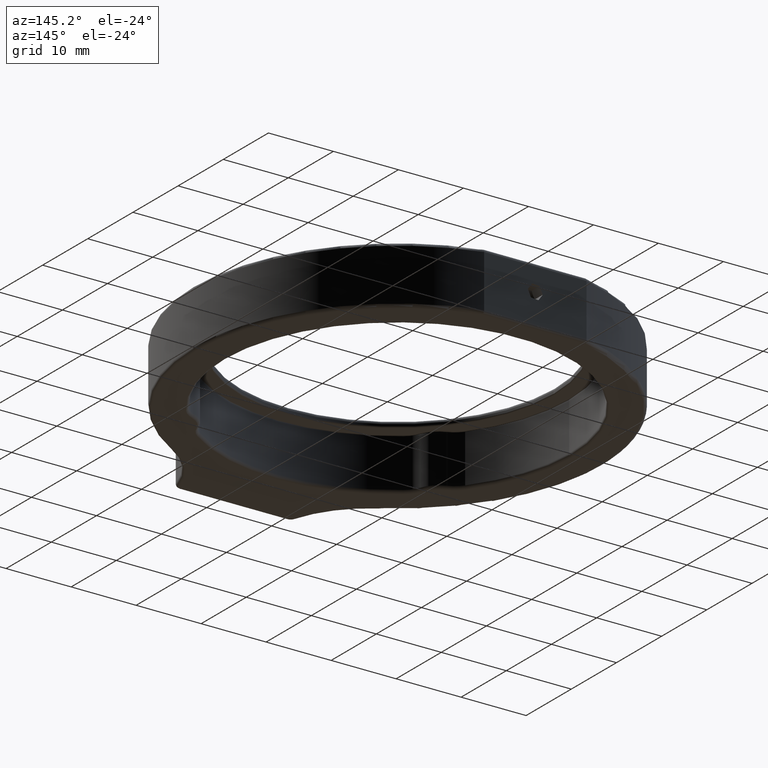
[diagram: clean part render]
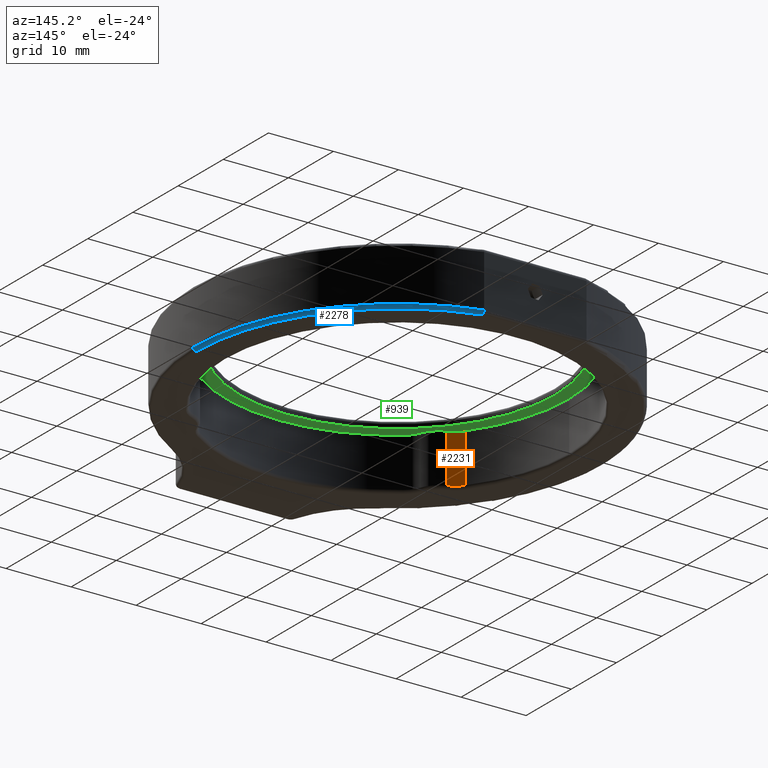
[diagram: same view with three faces highlighted in distinct colors, each labeled with its STEP entity id]
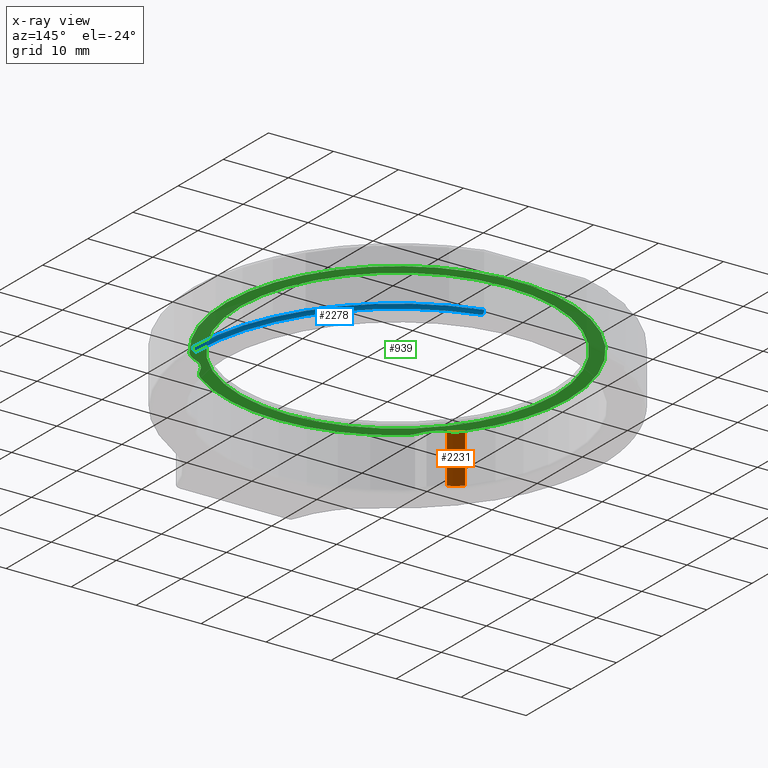
[diagram: x-ray of the same camera — body ghosted, the three highlighted faces saturated]
A machine part, auxiliary view with three faces highlighted in distinct colors.
The next image is the same camera in x-ray (body ghosted, the three faces saturated) — at least one of them is partly hidden behind the body in this view.
Their STEP definitions:

[orange] entity #2231 — the highlighted cylindrical surface (edge-blend (fillet) strip) has radius 4 mm, axis along (0, 0, -1).
#76 = CARTESIAN_POINT ( 'NONE',  ( -3.451771902203665500, -10.57320281242934000, 8.000000000007276000 ) ) ;
#82 = ORIENTED_EDGE ( 'NONE', *, *, #1062, .T. ) ;
#234 = EDGE_CURVE ( 'NONE', #1575, #1074, #2184, .T. ) ;
#247 = LINE ( 'NONE', #76, #892 ) ;
#558 = EDGE_CURVE ( 'NONE', #1888, #1776, #2025, .T. ) ;
#632 = AXIS2_PLACEMENT_3D ( 'NONE', #2185, #1344, #1780 ) ;
#758 = CARTESIAN_POINT ( 'NONE',  ( -3.451771902203665500, -10.57320281242934000, 7.900000000007276300 ) ) ;
#778 = AXIS2_PLACEMENT_3D ( 'NONE', #2369, #2135, #873 ) ;
#857 = VECTOR ( 'NONE', #2716, 1000.000000000000000 ) ;
#873 = DIRECTION ( 'NONE',  ( -1.000000000000000000, 0.0000000000000000000, 0.0000000000000000000 ) ) ;
#892 = VECTOR ( 'NONE', #1393, 1000.000000000000000 ) ;
#917 = CARTESIAN_POINT ( 'NONE',  ( -5.300392677468693100, -9.186881441482349000, 7.900000000007276300 ) ) ;
#958 = FACE_OUTER_BOUND ( 'NONE', #1402, .T. ) ;
#982 = ORIENTED_EDGE ( 'NONE', *, *, #1252, .F. ) ;
#1062 = EDGE_CURVE ( 'NONE', #1074, #1888, #247, .T. ) ;
#1074 = VERTEX_POINT ( 'NONE', #758 ) ;
#1219 = CARTESIAN_POINT ( 'NONE',  ( -5.300392677468693100, -9.186881441482349000, 0.5000000000072767300 ) ) ;
#1252 = EDGE_CURVE ( 'NONE', #1575, #1776, #2292, .T. ) ;
#1344 = DIRECTION ( 'NONE',  ( 0.0000000000000000000, -0.0000000000000000000, -1.000000000000000000 ) ) ;
#1393 = DIRECTION ( 'NONE',  ( 0.0000000000000000000, 0.0000000000000000000, -1.000000000000000000 ) ) ;
#1402 = EDGE_LOOP ( 'NONE', ( #982, #2203, #82, #1616 ) ) ;
#1442 = CARTESIAN_POINT ( 'NONE',  ( -5.300392677468693100, -9.186881441482349000, 8.000000000007276000 ) ) ;
#1495 = CARTESIAN_POINT ( 'NONE',  ( -3.451771902203665500, -10.57320281242934000, 0.5000000000072767300 ) ) ;
#1575 = VERTEX_POINT ( 'NONE', #917 ) ;
#1616 = ORIENTED_EDGE ( 'NONE', *, *, #558, .T. ) ;
#1700 = DIRECTION ( 'NONE',  ( 1.000000000000000000, 0.0000000000000000000, 0.0000000000000000000 ) ) ;
#1776 = VERTEX_POINT ( 'NONE', #1219 ) ;
#1780 = DIRECTION ( 'NONE',  ( 1.000000000000000000, -8.673617379884027600E-016, 0.0000000000000000000 ) ) ;
#1888 = VERTEX_POINT ( 'NONE', #1495 ) ;
#1917 = CYLINDRICAL_SURFACE ( 'NONE', #778, 4.000000000000003600 ) ;
#2025 = CIRCLE ( 'NONE', #632, 4.000000000000003600 ) ;
#2087 = AXIS2_PLACEMENT_3D ( 'NONE', #2754, #2518, #1700 ) ;
#2135 = DIRECTION ( 'NONE',  ( 0.0000000000000000000, 0.0000000000000000000, -1.000000000000000000 ) ) ;
#2184 = CIRCLE ( 'NONE', #2087, 4.000000000000003600 ) ;
#2185 = CARTESIAN_POINT ( 'NONE',  ( -2.078526767282554000, -6.816316096088863600, 0.5000000000072767300 ) ) ;
#2203 = ORIENTED_EDGE ( 'NONE', *, *, #234, .T. ) ;
#2231 = ADVANCED_FACE ( 'NONE', ( #958 ), #1917, .F. ) ;
#2292 = LINE ( 'NONE', #1442, #857 ) ;
#2369 = CARTESIAN_POINT ( 'NONE',  ( -2.078526767282554000, -6.816316096088863600, 8.000000000007276000 ) ) ;
#2518 = DIRECTION ( 'NONE',  ( -0.0000000000000000000, 0.0000000000000000000, 1.000000000000000000 ) ) ;
#2716 = DIRECTION ( 'NONE',  ( 0.0000000000000000000, 0.0000000000000000000, -1.000000000000000000 ) ) ;
#2754 = CARTESIAN_POINT ( 'NONE',  ( -2.078526767282554000, -6.816316096088863600, 7.900000000007276300 ) ) ;

[blue] entity #2278 — the highlighted toroidal blend (fillet) surface has major radius 31 mm and minor (blend) radius 0.5 mm.
#39 = CIRCLE ( 'NONE', #64, 0.5000000000000000000 ) ;
#64 = AXIS2_PLACEMENT_3D ( 'NONE', #2037, #2259, #949 ) ;
#158 = ORIENTED_EDGE ( 'NONE', *, *, #480, .F. ) ;
#225 = EDGE_LOOP ( 'NONE', ( #2480, #1604, #1009, #158 ) ) ;
#422 = DIRECTION ( 'NONE',  ( -0.0000000000000000000, 0.0000000000000000000, 1.000000000000000000 ) ) ;
#462 = B_SPLINE_CURVE_WITH_KNOTS ( 'NONE', 3,
 ( #1367, #1148, #737, #1385, #953, #1809 ),
 .UNSPECIFIED., .F., .F.,
 ( 4, 2, 4 ),
 ( 0.0000000000000000000, 0.0003921335252398203000, 0.0007842670504796406000 ),
 .UNSPECIFIED. ) ;
#480 = EDGE_CURVE ( 'NONE', #1879, #1613, #732, .T. ) ;
#553 = CIRCLE ( 'NONE', #2515, 31.00000000000000000 ) ;
#732 = CIRCLE ( 'NONE', #2341, 31.50000000000000000 ) ;
#737 = CARTESIAN_POINT ( 'NONE',  ( 23.83098825330529600, 36.90414387103619700, 0.2378764880585290100 ) ) ;
#789 = CARTESIAN_POINT ( 'NONE',  ( 23.83793020377155600, 36.95884983811465200, 0.5000000000072749600 ) ) ;
#848 = DIRECTION ( 'NONE',  ( 1.000000000000000000, 8.953411488912552700E-016, 0.0000000000000000000 ) ) ;
#885 = TOROIDAL_SURFACE ( 'NONE', #1832, 31.00000000000000000, 0.5000000000000000000 ) ;
#900 = CARTESIAN_POINT ( 'NONE',  ( 15.96392232975974000, 6.458849838114653100, 0.5000000000072767300 ) ) ;
#949 = DIRECTION ( 'NONE',  ( 0.0000000000000000000, 0.0000000000000000000, -1.000000000000000000 ) ) ;
#953 = CARTESIAN_POINT ( 'NONE',  ( 23.79077179640424000, 36.58850773930073100, 7.276534789209948600E-012 ) ) ;
#1009 = ORIENTED_EDGE ( 'NONE', *, *, #2111, .F. ) ;
#1143 = EDGE_CURVE ( 'NONE', #2163, #1879, #39, .T. ) ;
#1148 = CARTESIAN_POINT ( 'NONE',  ( 23.83793020377155300, 36.95884983811464500, 0.3674006963429709000 ) ) ;
#1367 = CARTESIAN_POINT ( 'NONE',  ( 23.83793020377155600, 36.95884983811465200, 0.5000000000072749600 ) ) ;
#1385 = CARTESIAN_POINT ( 'NONE',  ( 23.80747829215256300, 36.71946581592435900, 0.05382198241546933700 ) ) ;
#1604 = ORIENTED_EDGE ( 'NONE', *, *, #1874, .F. ) ;
#1613 = VERTEX_POINT ( 'NONE', #789 ) ;
#1716 = CARTESIAN_POINT ( 'NONE',  ( 15.96392232975974000, 6.458849838114653100, 0.5000000000072767300 ) ) ;
#1751 = DIRECTION ( 'NONE',  ( -0.0000000000000000000, 0.0000000000000000000, 1.000000000000000000 ) ) ;
#1809 = CARTESIAN_POINT ( 'NONE',  ( 23.77417200566638700, 36.45884983811464500, 7.276297619984717400E-012 ) ) ;
#1832 = AXIS2_PLACEMENT_3D ( 'NONE', #900, #1751, #2792 ) ;
#1874 = EDGE_CURVE ( 'NONE', #2090, #2163, #553, .T. ) ;
#1879 = VERTEX_POINT ( 'NONE', #2783 ) ;
#1907 = CARTESIAN_POINT ( 'NONE',  ( 15.96392232975974000, 6.458849838114653100, 7.276297619984717400E-012 ) ) ;
#1969 = CARTESIAN_POINT ( 'NONE',  ( 23.77417200566638700, 36.45884983811464500, 7.276297619984717400E-012 ) ) ;
#2037 = CARTESIAN_POINT ( 'NONE',  ( 46.96392232975974000, 6.458849838114653100, 0.5000000000072767300 ) ) ;
#2090 = VERTEX_POINT ( 'NONE', #1969 ) ;
#2111 = EDGE_CURVE ( 'NONE', #1613, #2090, #462, .T. ) ;
#2125 = DIRECTION ( 'NONE',  ( 0.0000000000000000000, -0.0000000000000000000, -1.000000000000000000 ) ) ;
#2163 = VERTEX_POINT ( 'NONE', #2459 ) ;
#2259 = DIRECTION ( 'NONE',  ( 0.0000000000000000000, -1.000000000000000000, 0.0000000000000000000 ) ) ;
#2278 = ADVANCED_FACE ( 'NONE', ( #2551 ), #885, .T. ) ;
#2341 = AXIS2_PLACEMENT_3D ( 'NONE', #1716, #422, #2354 ) ;
#2354 = DIRECTION ( 'NONE',  ( 1.000000000000000000, 0.0000000000000000000, 0.0000000000000000000 ) ) ;
#2459 = CARTESIAN_POINT ( 'NONE',  ( 46.96392232975974000, 6.458849838114653100, 7.276297619984717400E-012 ) ) ;
#2480 = ORIENTED_EDGE ( 'NONE', *, *, #1143, .F. ) ;
#2515 = AXIS2_PLACEMENT_3D ( 'NONE', #1907, #2125, #848 ) ;
#2551 = FACE_OUTER_BOUND ( 'NONE', #225, .T. ) ;
#2783 = CARTESIAN_POINT ( 'NONE',  ( 47.46392232975974000, 6.458849838114653100, 0.5000000000072767300 ) ) ;
#2792 = DIRECTION ( 'NONE',  ( 1.000000000000000000, 0.0000000000000000000, 0.0000000000000000000 ) ) ;

[green] entity #939 — the highlighted planar face has unit normal (-0, 0, 1).
#21 = CARTESIAN_POINT ( 'NONE',  ( 40.16392232975973500, 6.458849838114653100, 8.000000000007276000 ) ) ;
#29 = CARTESIAN_POINT ( 'NONE',  ( 37.14769068923350700, -9.127617307847517100, 8.000000000007276000 ) ) ;
#37 = CARTESIAN_POINT ( 'NONE',  ( 15.96392232975974000, 6.458849838114653100, 8.000000000007276000 ) ) ;
#40 = EDGE_CURVE ( 'NONE', #916, #1245, #2085, .T. ) ;
#43 = CARTESIAN_POINT ( 'NONE',  ( 42.26392232975975100, 6.458849838114653100, 8.000000000007276000 ) ) ;
#57 = EDGE_CURVE ( 'NONE', #1976, #981, #863, .T. ) ;
#62 = CARTESIAN_POINT ( 'NONE',  ( -10.33607767024026800, 6.458849838114656600, 8.000000000007276000 ) ) ;
#67 = AXIS2_PLACEMENT_3D ( 'NONE', #1031, #1041, #386 ) ;
#74 = FACE_BOUND ( 'NONE', #388, .T. ) ;
#77 = DIRECTION ( 'NONE',  ( 1.000000000000000000, 0.0000000000000000000, 0.0000000000000000000 ) ) ;
#91 = ORIENTED_EDGE ( 'NONE', *, *, #1578, .T. ) ;
#117 = CIRCLE ( 'NONE', #2775, 4.100000000000006800 ) ;
#120 = CARTESIAN_POINT ( 'NONE',  ( 15.96392232975974000, 6.458849838114653100, 8.000000000007276000 ) ) ;
#147 = EDGE_CURVE ( 'NONE', #1245, #458, #117, .T. ) ;
#157 = DIRECTION ( 'NONE',  ( -0.0000000000000000000, 0.0000000000000000000, 1.000000000000000000 ) ) ;
#186 = VERTEX_POINT ( 'NONE', #1858 ) ;
#198 = ORIENTED_EDGE ( 'NONE', *, *, #1053, .T. ) ;
#265 = CARTESIAN_POINT ( 'NONE',  ( -8.236077670240263200, 6.458849838114655700, 8.000000000007276000 ) ) ;
#304 = DIRECTION ( 'NONE',  ( 1.000000000000000000, 0.0000000000000000000, 0.0000000000000000000 ) ) ;
#326 = VERTEX_POINT ( 'NONE', #634 ) ;
#365 = ORIENTED_EDGE ( 'NONE', *, *, #1317, .T. ) ;
#377 = CIRCLE ( 'NONE', #1193, 26.30000000000000400 ) ;
#386 = DIRECTION ( 'NONE',  ( 1.000000000000000000, 0.0000000000000000000, 0.0000000000000000000 ) ) ;
#388 = EDGE_LOOP ( 'NONE', ( #1338, #2032 ) ) ;
#417 = ORIENTED_EDGE ( 'NONE', *, *, #1414, .T. ) ;
#458 = VERTEX_POINT ( 'NONE', #642 ) ;
#494 = AXIS2_PLACEMENT_3D ( 'NONE', #1027, #157, #1243 ) ;
#590 = CARTESIAN_POINT ( 'NONE',  ( 35.34528543335012100, -10.47928064452082000, 8.000000000007276000 ) ) ;
#634 = CARTESIAN_POINT ( 'NONE',  ( 31.55038947572197500, -14.72491852135907400, 8.000000000007276000 ) ) ;
#642 = CARTESIAN_POINT ( 'NONE',  ( 32.90205281239528300, -12.92251326547567600, 8.000000000007276000 ) ) ;
#676 = DIRECTION ( 'NONE',  ( 1.000000000000000000, 0.0000000000000000000, 0.0000000000000000000 ) ) ;
#733 = EDGE_CURVE ( 'NONE', #2299, #1236, #1795, .T. ) ;
#743 = DIRECTION ( 'NONE',  ( 1.000000000000000000, 0.0000000000000000000, 0.0000000000000000000 ) ) ;
#754 = EDGE_CURVE ( 'NONE', #1236, #776, #997, .T. ) ;
#759 = CARTESIAN_POINT ( 'NONE',  ( 15.96392232975974000, 6.458849838114653100, 8.000000000007276000 ) ) ;
#776 = VERTEX_POINT ( 'NONE', #2060 ) ;
#800 = CARTESIAN_POINT ( 'NONE',  ( 2.688756395556166600, -11.58359925892760200, 8.000000000007276000 ) ) ;
#863 = CIRCLE ( 'NONE', #1094, 24.19999999999999900 ) ;
#914 = VERTEX_POINT ( 'NONE', #62 ) ;
#916 = VERTEX_POINT ( 'NONE', #29 ) ;
#939 = ADVANCED_FACE ( 'NONE', ( #1868, #74 ), #1129, .F. ) ;
#981 = VERTEX_POINT ( 'NONE', #265 ) ;
#997 = CIRCLE ( 'NONE', #2511, 4.100000000000005900 ) ;
#1008 = DIRECTION ( 'NONE',  ( -0.0000000000000000000, 0.0000000000000000000, 1.000000000000000000 ) ) ;
#1027 = CARTESIAN_POINT ( 'NONE',  ( 15.96392232975974000, 6.458849838114653100, 8.000000000007276000 ) ) ;
#1031 = CARTESIAN_POINT ( 'NONE',  ( 15.96392232975974000, 6.458849838114653100, 8.000000000007276000 ) ) ;
#1041 = DIRECTION ( 'NONE',  ( 0.0000000000000000000, -0.0000000000000000000, -1.000000000000000000 ) ) ;
#1053 = EDGE_CURVE ( 'NONE', #326, #2299, #377, .T. ) ;
#1094 = AXIS2_PLACEMENT_3D ( 'NONE', #759, #2669, #77 ) ;
#1112 = DIRECTION ( 'NONE',  ( -0.0000000000000000000, 0.0000000000000000000, 1.000000000000000000 ) ) ;
#1125 = CIRCLE ( 'NONE', #1371, 3.900000000000000800 ) ;
#1129 = PLANE ( 'NONE',  #1761 ) ;
#1193 = AXIS2_PLACEMENT_3D ( 'NONE', #120, #2653, #743 ) ;
#1223 = CIRCLE ( 'NONE', #2320, 26.30000000000000400 ) ;
#1231 = CARTESIAN_POINT ( 'NONE',  ( -0.9742081528757961000, -12.92251326547568300, 8.000000000007276000 ) ) ;
#1236 = VERTEX_POINT ( 'NONE', #1231 ) ;
#1243 = DIRECTION ( 'NONE',  ( 1.000000000000000000, 0.0000000000000000000, 0.0000000000000000000 ) ) ;
#1245 = VERTEX_POINT ( 'NONE', #590 ) ;
#1317 = EDGE_CURVE ( 'NONE', #914, #2333, #1658, .T. ) ;
#1326 = CARTESIAN_POINT ( 'NONE',  ( 15.96392232975974000, 6.458849838114653100, 8.000000000007276000 ) ) ;
#1334 = DIRECTION ( 'NONE',  ( 1.000000000000000000, 0.0000000000000000000, 0.0000000000000000000 ) ) ;
#1338 = ORIENTED_EDGE ( 'NONE', *, *, #57, .T. ) ;
#1371 = AXIS2_PLACEMENT_3D ( 'NONE', #2140, #2597, #1974 ) ;
#1414 = EDGE_CURVE ( 'NONE', #458, #326, #1125, .T. ) ;
#1417 = DIRECTION ( 'NONE',  ( 1.000000000000000000, -1.779203565104415600E-015, 0.0000000000000000000 ) ) ;
#1482 = EDGE_CURVE ( 'NONE', #186, #914, #1223, .T. ) ;
#1578 = EDGE_CURVE ( 'NONE', #776, #186, #2703, .T. ) ;
#1596 = CARTESIAN_POINT ( 'NONE',  ( -2.078526767282554000, -6.816316096088863600, 8.000000000007276000 ) ) ;
#1658 = CIRCLE ( 'NONE', #67, 26.30000000000000400 ) ;
#1684 = ORIENTED_EDGE ( 'NONE', *, *, #1482, .T. ) ;
#1708 = AXIS2_PLACEMENT_3D ( 'NONE', #800, #2293, #1417 ) ;
#1758 = DIRECTION ( 'NONE',  ( 0.0000000000000000000, -0.0000000000000000000, -1.000000000000000000 ) ) ;
#1761 = AXIS2_PLACEMENT_3D ( 'NONE', #1794, #1112, #1334 ) ;
#1785 = CARTESIAN_POINT ( 'NONE',  ( 34.00637142680204100, -6.816316096088861800, 8.000000000007276000 ) ) ;
#1787 = AXIS2_PLACEMENT_3D ( 'NONE', #1326, #1758, #676 ) ;
#1794 = CARTESIAN_POINT ( 'NONE',  ( 15.96392232975974000, 6.458849838114653100, 8.000000000007276000 ) ) ;
#1795 = CIRCLE ( 'NONE', #1708, 3.900000000000004400 ) ;
#1844 = ORIENTED_EDGE ( 'NONE', *, *, #40, .T. ) ;
#1858 = CARTESIAN_POINT ( 'NONE',  ( -5.219846029714040500, -9.127617307847511800, 8.000000000007276000 ) ) ;
#1868 = FACE_OUTER_BOUND ( 'NONE', #2339, .T. ) ;
#1873 = DIRECTION ( 'NONE',  ( 1.000000000000000000, 0.0000000000000000000, 0.0000000000000000000 ) ) ;
#1967 = ORIENTED_EDGE ( 'NONE', *, *, #733, .T. ) ;
#1971 = EDGE_CURVE ( 'NONE', #2333, #916, #2592, .T. ) ;
#1974 = DIRECTION ( 'NONE',  ( 1.000000000000000000, 8.896017825522085600E-016, 0.0000000000000000000 ) ) ;
#1976 = VERTEX_POINT ( 'NONE', #21 ) ;
#1997 = DIRECTION ( 'NONE',  ( 0.0000000000000000000, -0.0000000000000000000, -1.000000000000000000 ) ) ;
#2030 = ORIENTED_EDGE ( 'NONE', *, *, #147, .T. ) ;
#2032 = ORIENTED_EDGE ( 'NONE', *, *, #2468, .T. ) ;
#2060 = CARTESIAN_POINT ( 'NONE',  ( -3.417440773830635600, -10.47928064452082900, 8.000000000007276000 ) ) ;
#2085 = CIRCLE ( 'NONE', #2382, 3.900000000000000800 ) ;
#2097 = ORIENTED_EDGE ( 'NONE', *, *, #754, .T. ) ;
#2140 = CARTESIAN_POINT ( 'NONE',  ( 29.23908826396332100, -11.58359925892760200, 8.000000000007276000 ) ) ;
#2147 = CARTESIAN_POINT ( 'NONE',  ( 0.3774551837975054800, -14.72491852135907700, 8.000000000007276000 ) ) ;
#2177 = DIRECTION ( 'NONE',  ( 0.0000000000000000000, -0.0000000000000000000, -1.000000000000000000 ) ) ;
#2219 = DIRECTION ( 'NONE',  ( 1.000000000000000000, 0.0000000000000000000, 0.0000000000000000000 ) ) ;
#2284 = CARTESIAN_POINT ( 'NONE',  ( -4.825017037124790200, -14.33008952876980900, 8.000000000007276000 ) ) ;
#2286 = CIRCLE ( 'NONE', #494, 24.19999999999999900 ) ;
#2293 = DIRECTION ( 'NONE',  ( 0.0000000000000000000, -0.0000000000000000000, -1.000000000000000000 ) ) ;
#2295 = DIRECTION ( 'NONE',  ( -0.0000000000000000000, 0.0000000000000000000, 1.000000000000000000 ) ) ;
#2299 = VERTEX_POINT ( 'NONE', #2147 ) ;
#2320 = AXIS2_PLACEMENT_3D ( 'NONE', #37, #2586, #2219 ) ;
#2333 = VERTEX_POINT ( 'NONE', #43 ) ;
#2339 = EDGE_LOOP ( 'NONE', ( #198, #1967, #2097, #91, #1684, #365, #2688, #1844, #2030, #417 ) ) ;
#2382 = AXIS2_PLACEMENT_3D ( 'NONE', #1785, #1997, #2647 ) ;
#2468 = EDGE_CURVE ( 'NONE', #981, #1976, #2286, .T. ) ;
#2511 = AXIS2_PLACEMENT_3D ( 'NONE', #2284, #1008, #2714 ) ;
#2586 = DIRECTION ( 'NONE',  ( 0.0000000000000000000, -0.0000000000000000000, -1.000000000000000000 ) ) ;
#2592 = CIRCLE ( 'NONE', #1787, 26.30000000000000400 ) ;
#2597 = DIRECTION ( 'NONE',  ( 0.0000000000000000000, -0.0000000000000000000, -1.000000000000000000 ) ) ;
#2611 = AXIS2_PLACEMENT_3D ( 'NONE', #1596, #2177, #304 ) ;
#2647 = DIRECTION ( 'NONE',  ( 1.000000000000000000, 0.0000000000000000000, 0.0000000000000000000 ) ) ;
#2653 = DIRECTION ( 'NONE',  ( 0.0000000000000000000, -0.0000000000000000000, -1.000000000000000000 ) ) ;
#2669 = DIRECTION ( 'NONE',  ( -0.0000000000000000000, 0.0000000000000000000, 1.000000000000000000 ) ) ;
#2688 = ORIENTED_EDGE ( 'NONE', *, *, #1971, .T. ) ;
#2700 = CARTESIAN_POINT ( 'NONE',  ( 36.75286169664427400, -14.33008952876980600, 8.000000000007276000 ) ) ;
#2703 = CIRCLE ( 'NONE', #2611, 3.900000000000003900 ) ;
#2714 = DIRECTION ( 'NONE',  ( 1.000000000000000000, 0.0000000000000000000, 0.0000000000000000000 ) ) ;
#2775 = AXIS2_PLACEMENT_3D ( 'NONE', #2700, #2295, #1873 ) ;